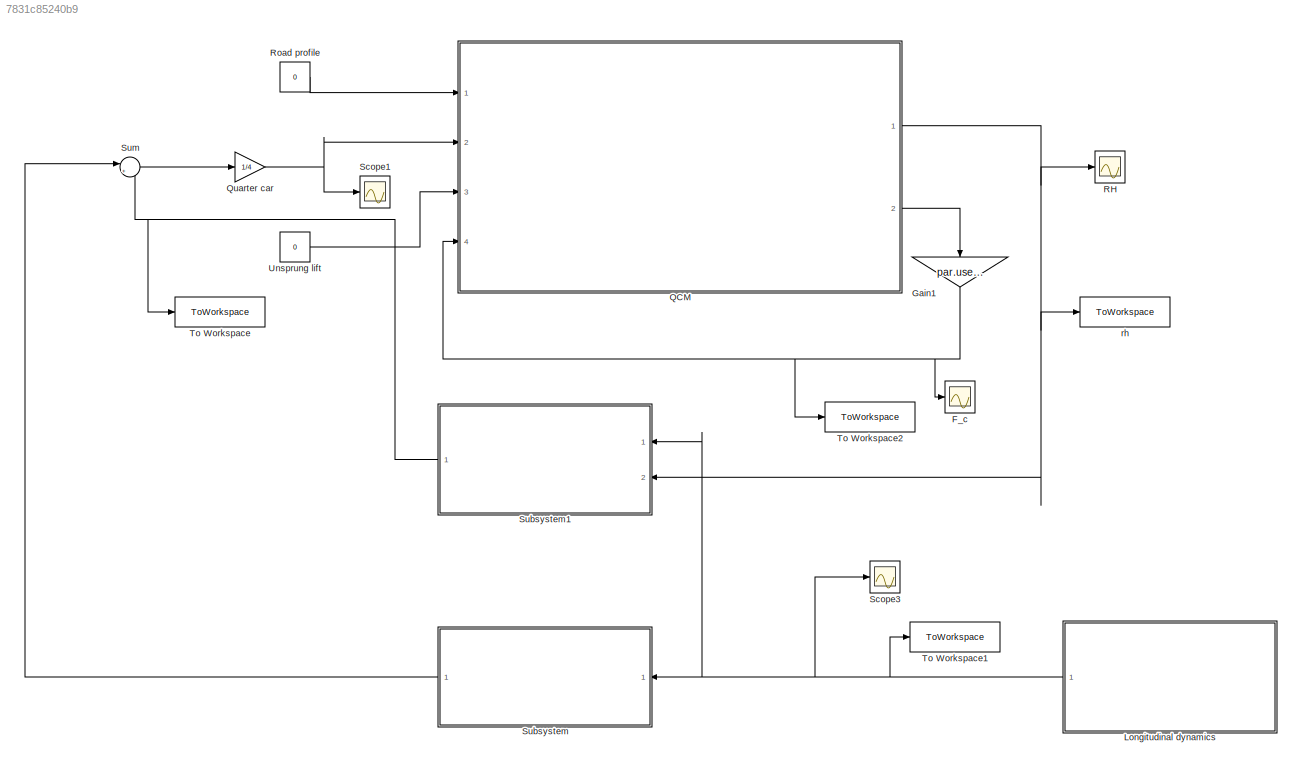
MODEL slx_7831c85240b9
KIND model
CONFIG AbsTol = auto
CONFIG EnableMultiTasking = off
CONFIG FixedStep = 0.01
CONFIG MaxStep = auto
CONFIG MinStep = auto
CONFIG RelTol = 1e-3
CONFIG SampleTimeConstraint = Unconstrained
CONFIG SolverName = FixedStepAuto
CONFIG StartTime = 0.0
CONFIG StopTime = 30
BLOCK [Scope] F_c
  Floating = off
  NumInputPorts = 1
  Ports = [1]
  ScopeSpecificationString = Simulink.scopes.TimeScopeBlockCfg('CurrentConfiguration', extmgr.ConfigurationSet(extmgr.Configuration('Core','General UI',true),extmgr.Configuration('Core','Source UI',true),extmgr.Configuration('Sources','WiredSimulink',true,'DataLoggingVariableName','ScopeData1'),extmgr.Configuration('Visuals','Time Domain',true,'SerializedDisplays',{struct('MinYLimReal','-1984.59173','MaxYLimReal','220.51019',...<+1434ch>
BLOCK [Gain] Gain1
  Gain = par.use_LQR
  NameLocation = right
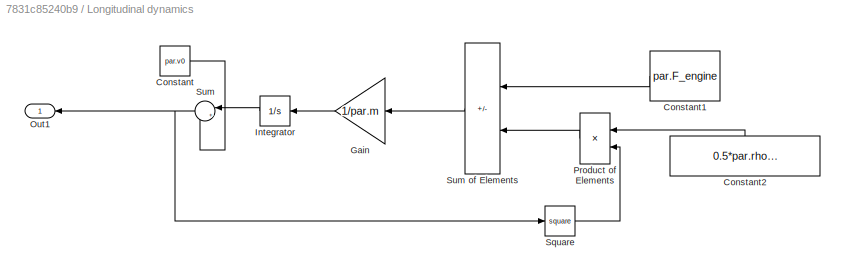
BLOCK [SubSystem] Longitudinal dynamics
  NameLocation = top
  Ports = [0, 1]
  RequestExecContextInheritance = off
BLOCK [Constant] Longitudinal dynamics/Constant
  Value = par.v0
BLOCK [Constant] Longitudinal dynamics/Constant1
  NameLocation = top
  Value = par.F_engine
BLOCK [Constant] Longitudinal dynamics/Constant2
  NameLocation = right
  Value = 0.5*par.rho*par.Cd*par.A
BLOCK [Gain] Longitudinal dynamics/Gain
  Gain = 1/par.m
  NameLocation = top
BLOCK [Integrator] Longitudinal dynamics/Integrator
  NameLocation = top
  Ports = [1, 1]
BLOCK [Outport] Longitudinal dynamics/Out1
  NameLocation = top
BLOCK [Product] Longitudinal dynamics/Product of Elements
  Inputs = **
  NameLocation = top
  Ports = [2, 1]
BLOCK [Math] Longitudinal dynamics/Square
  Operator = square
  Ports = [1, 1]
BLOCK [Sum] Longitudinal dynamics/Sum
  Inputs = |++
  NameLocation = top
  Ports = [2, 1]
BLOCK [Sum] Longitudinal dynamics/Sum of Elements
  IconShape = rectangular
  Inputs = +-
  NameLocation = top
  Ports = [2, 1]
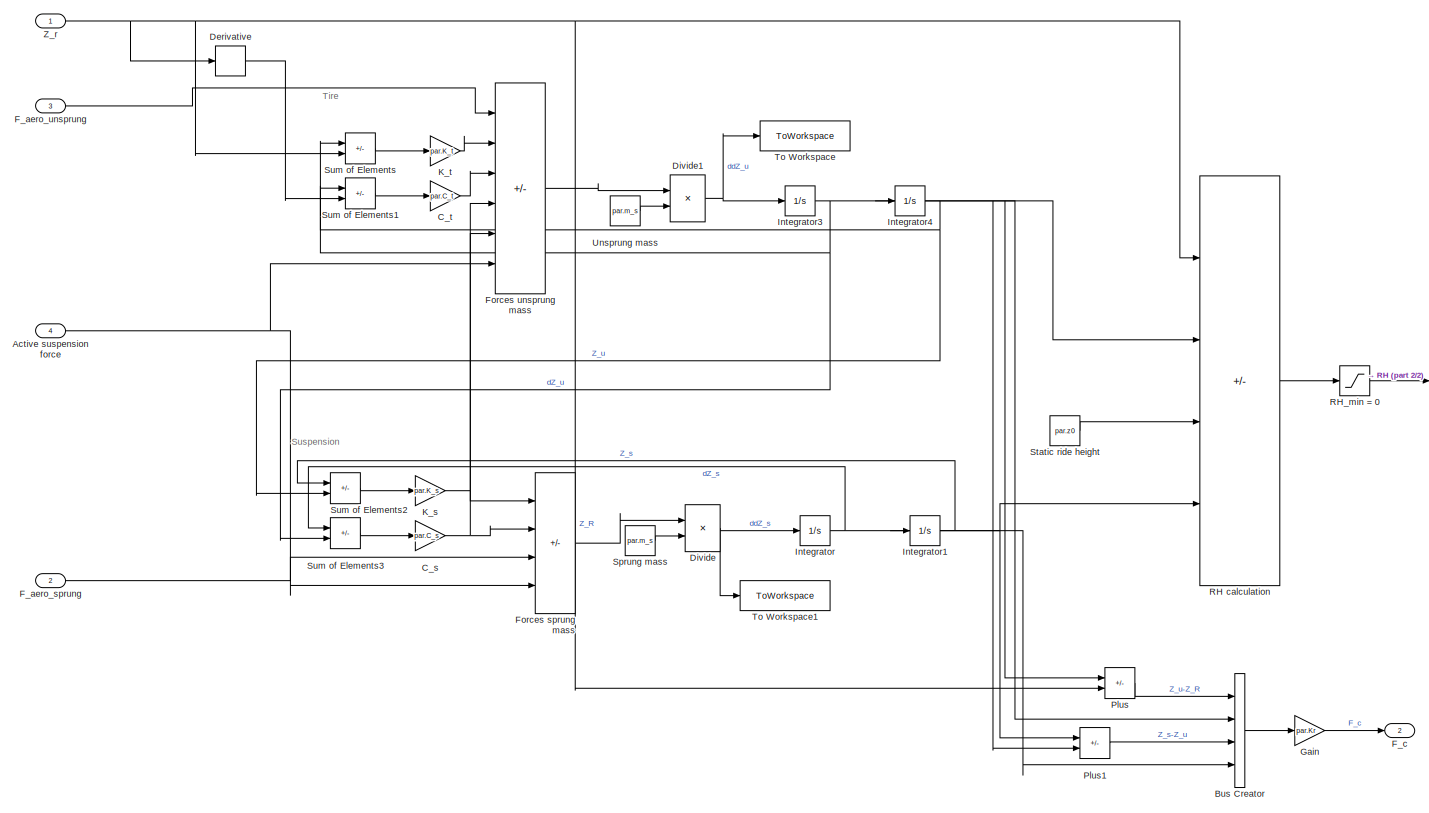
[diagram: QCM - part 1/2, most of the canvas]
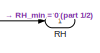
[diagram: QCM - part 2/2, middle right region]
BLOCK [SubSystem] QCM
  Ports = [4, 2]
  RequestExecContextInheritance = off
BLOCK [Inport] QCM/Active suspension force
  Port = 4
BLOCK [BusCreator] QCM/Bus Creator
  DisplayOption = bar
  InheritFromInputs = on
  Inputs = 4
  Ports = [4, 1]
BLOCK [Gain] QCM/C_s
  Gain = par.C_s
BLOCK [Gain] QCM/C_t
  Gain = par.C_t
BLOCK [Derivative] QCM/Derivative
BLOCK [Product] QCM/Divide
  Inputs = */
  Ports = [2, 1]
BLOCK [Product] QCM/Divide1
  Inputs = */
  Ports = [2, 1]
BLOCK [Inport] QCM/F_aero_sprung
  Port = 2
BLOCK [Inport] QCM/F_aero_unsprung
  Port = 3
BLOCK [Outport] QCM/F_c
  Port = 2
BLOCK [Sum] QCM/Forces sprung mass
  IconShape = rectangular
  Inputs = ++--
  Ports = [4, 1]
BLOCK [Sum] QCM/Forces unsprung mass
  IconShape = rectangular
  Inputs = +++---
  Ports = [6, 1]
BLOCK [Gain] QCM/Gain
  Gain = par.Kr
  Multiplication = Matrix(K*u)
BLOCK [Integrator] QCM/Integrator
  Ports = [1, 1]
BLOCK [Integrator] QCM/Integrator1
  Ports = [1, 1]
BLOCK [Integrator] QCM/Integrator3
  Ports = [1, 1]
BLOCK [Integrator] QCM/Integrator4
  Ports = [1, 1]
BLOCK [Gain] QCM/K_s
  Gain = par.K_s
BLOCK [Gain] QCM/K_t
  Gain = par.K_t
BLOCK [Sum] QCM/Plus
  IconShape = rectangular
  Inputs = +-
  Ports = [2, 1]
BLOCK [Sum] QCM/Plus1
  IconShape = rectangular
  Inputs = +-
  Ports = [2, 1]
BLOCK [Outport] QCM/RH
BLOCK [Sum] QCM/RH calculation
  IconShape = rectangular
  Inputs = -+++
  Ports = [4, 1]
BLOCK [Saturate] QCM/RH_min = 0
  LowerLimit = 0
  UpperLimit = inf
BLOCK [Constant] QCM/Sprung mass
  Value = par.m_s
BLOCK [Constant] QCM/Static ride height
  Value = par.z0
BLOCK [Sum] QCM/Sum of Elements
  IconShape = rectangular
  Inputs = -+
  Ports = [2, 1]
BLOCK [Sum] QCM/Sum of Elements1
  IconShape = rectangular
  Inputs = -+
  Ports = [2, 1]
BLOCK [Sum] QCM/Sum of Elements2
  IconShape = rectangular
  Inputs = -+
  Ports = [2, 1]
BLOCK [Sum] QCM/Sum of Elements3
  IconShape = rectangular
  Inputs = -+
  Ports = [2, 1]
BLOCK [ToWorkspace] QCM/To Workspace
  FixptAsFi = on
  MaxDataPoints = inf
  Ports = [1]
  SampleTime = -1
  SaveFormat = Timeseries
  VariableName = ddZ_u
BLOCK [ToWorkspace] QCM/To Workspace1
  FixptAsFi = on
  MaxDataPoints = inf
  Ports = [1]
  SampleTime = -1
  SaveFormat = Timeseries
  VariableName = ddZ_s
BLOCK [Constant] QCM/Unsprung mass
  Value = par.m_s
BLOCK [Inport] QCM/Z_r
BLOCK [Gain] Quarter car
  Gain = 1/4
BLOCK [Scope] RH
  Floating = off
  NumInputPorts = 1
  Ports = [1]
  ScopeSpecificationString = Simulink.scopes.TimeScopeBlockCfg('CurrentConfiguration', extmgr.ConfigurationSet(extmgr.Configuration('Core','General UI',true),extmgr.Configuration('Core','Source UI',true),extmgr.Configuration('Sources','WiredSimulink',true),extmgr.Configuration('Visuals','Time Domain',true,'SerializedDisplays',{struct('MinYLimReal','0.04173','MaxYLimReal','0.21759','YLabelReal','','MinYLimMag','0.04173','MaxYL...<+1396ch>
BLOCK [Constant] Road profile
  Value = 0
BLOCK [Scope] Scope1
  Floating = off
  NumInputPorts = 1
  Ports = [1]
  ScopeSpecificationString = Simulink.scopes.TimeScopeBlockCfg('CurrentConfiguration', extmgr.ConfigurationSet(extmgr.Configuration('Core','General UI',true),extmgr.Configuration('Core','Source UI',true),extmgr.Configuration('Sources','WiredSimulink',true,'DataLoggingVariableName','ScopeData1'),extmgr.Configuration('Visuals','Time Domain',true,'SerializedDisplays',{struct('MinYLimReal','3850.43642','MaxYLimReal','17534.94257'...<+1475ch>
BLOCK [Scope] Scope3
  Floating = off
  NumInputPorts = 1
  Ports = [1]
  ScopeSpecificationString = Simulink.scopes.TimeScopeBlockCfg('CurrentConfiguration', extmgr.ConfigurationSet(extmgr.Configuration('Core','General UI',true),extmgr.Configuration('Core','Source UI',true),extmgr.Configuration('Sources','WiredSimulink',true,'DataLoggingVariableName','ScopeData2'),extmgr.Configuration('Visuals','Time Domain',true,'SerializedDisplays',{struct('MinYLimReal','58.70747','MaxYLimReal','60.09151','YLa...<+1473ch>
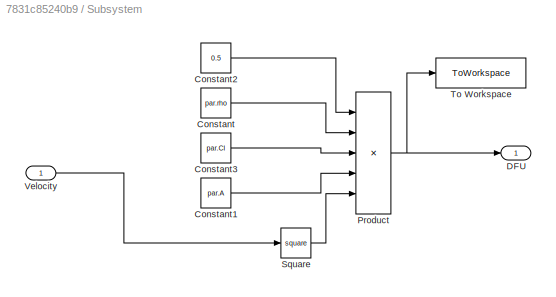
BLOCK [SubSystem] Subsystem
  NameLocation = top
  Ports = [1, 1]
  RequestExecContextInheritance = off
BLOCK [Constant] Subsystem/Constant
  Value = par.rho
BLOCK [Constant] Subsystem/Constant1
  Value = par.A
BLOCK [Constant] Subsystem/Constant2
  Value = 0.5
BLOCK [Constant] Subsystem/Constant3
  Value = par.Cl
BLOCK [Outport] Subsystem/DFU
BLOCK [Product] Subsystem/Product
  Inputs = 5
  Ports = [5, 1]
BLOCK [Math] Subsystem/Square
  Operator = square
  Ports = [1, 1]
BLOCK [ToWorkspace] Subsystem/To Workspace
  FixptAsFi = on
  MaxDataPoints = inf
  Ports = [1]
  SampleTime = -1
  SaveFormat = Timeseries
  VariableName = dfu
BLOCK [Inport] Subsystem/Velocity
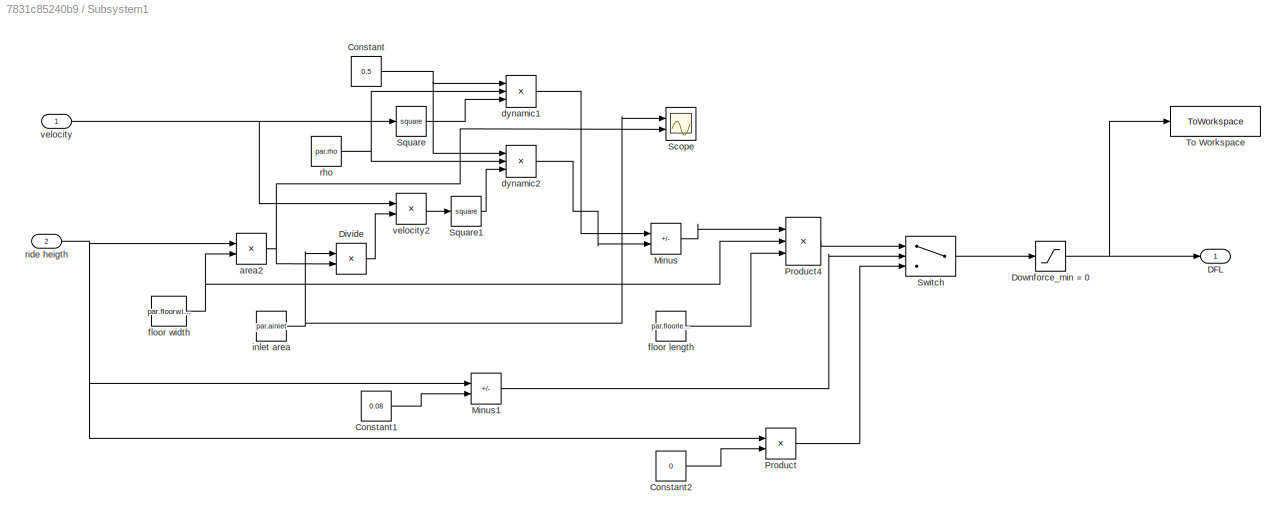
BLOCK [SubSystem] Subsystem1
  NameLocation = top
  Ports = [2, 1]
  RequestExecContextInheritance = off
BLOCK [Constant] Subsystem1/Constant
  Value = 0.5
BLOCK [Constant] Subsystem1/Constant1
  Value = 0.08
BLOCK [Constant] Subsystem1/Constant2
  Value = 0
BLOCK [Outport] Subsystem1/DFL
BLOCK [Product] Subsystem1/Divide
  Inputs = */
  Ports = [2, 1]
BLOCK [Saturate] Subsystem1/Downforce_min = 0
  LowerLimit = 0
  UpperLimit = Inf
BLOCK [Sum] Subsystem1/Minus
  IconShape = rectangular
  Inputs = -+
  Ports = [2, 1]
BLOCK [Sum] Subsystem1/Minus1
  IconShape = rectangular
  Inputs = +-
  Ports = [2, 1]
BLOCK [Product] Subsystem1/Product
  Ports = [2, 1]
BLOCK [Product] Subsystem1/Product4
  Inputs = 3
  Ports = [3, 1]
BLOCK [Scope] Subsystem1/Scope
  Floating = off
  NumInputPorts = 2
  Ports = [2]
  ScopeSpecificationString = Simulink.scopes.TimeScopeBlockCfg('CurrentConfiguration', extmgr.ConfigurationSet(extmgr.Configuration('Core','General UI',true),extmgr.Configuration('Core','Source UI',true),extmgr.Configuration('Sources','WiredSimulink',true,'DataLoggingVariableName','ScopeData2'),extmgr.Configuration('Visuals','Time Domain',true,'SerializedDisplays',{struct('MinYLimReal','0.01255','MaxYLimReal','0.12083','YLabe...<+1406ch>
BLOCK [Math] Subsystem1/Square
  Operator = square
  Ports = [1, 1]
BLOCK [Math] Subsystem1/Square1
  Operator = square
  Ports = [1, 1]
BLOCK [Switch] Subsystem1/Switch
  Criteria = u2 > Threshold
  InputSameDT = off
  SaturateOnIntegerOverflow = off
BLOCK [ToWorkspace] Subsystem1/To Workspace
  FixptAsFi = on
  MaxDataPoints = inf
  Ports = [1]
  SampleTime = -1
  SaveFormat = Timeseries
  VariableName = dfl
BLOCK [Product] Subsystem1/area2
  Ports = [2, 1]
BLOCK [Product] Subsystem1/dynamic1
  Inputs = 3
  Ports = [3, 1]
BLOCK [Product] Subsystem1/dynamic2
  Inputs = 3
  Ports = [3, 1]
BLOCK [Constant] Subsystem1/floor length
  Value = par.floorlength
BLOCK [Constant] Subsystem1/floor width
  Value = par.floorwidth
BLOCK [Constant] Subsystem1/inlet area
  Value = par.ainlet
BLOCK [Constant] Subsystem1/rho
  Value = par.rho
BLOCK [Inport] Subsystem1/ride heigth
  Port = 2
BLOCK [Inport] Subsystem1/velocity
BLOCK [Product] Subsystem1/velocity2
  Ports = [2, 1]
BLOCK [Sum] Sum
  Inputs = |++
  Ports = [2, 1]
BLOCK [ToWorkspace] To Workspace
  FixptAsFi = on
  MaxDataPoints = inf
  Ports = [1]
  SampleTime = -1
  SaveFormat = Timeseries
  VariableName = lower_downforce
BLOCK [ToWorkspace] To Workspace1
  FixptAsFi = on
  MaxDataPoints = inf
  Ports = [1]
  SampleTime = -1
  SaveFormat = Timeseries
  VariableName = V
BLOCK [ToWorkspace] To Workspace2
  FixptAsFi = on
  MaxDataPoints = inf
  Ports = [1]
  SampleTime = -1
  SaveFormat = Timeseries
  VariableName = u
BLOCK [Constant] Unsprung lift
  Value = 0
BLOCK [ToWorkspace] rh
  FixptAsFi = on
  MaxDataPoints = inf
  Ports = [1]
  SampleTime = -1
  SaveFormat = Timeseries
  VariableName = RH
ANNOTATION QCM: Suspension
ANNOTATION QCM: Tire
NET Gain1:1 -> F_c:1, QCM:4, To Workspace2:1
LINE Longitudinal dynamics/Constant1:1 -> Longitudinal dynamics/Sum of Elements:1
LINE Longitudinal dynamics/Constant2:1 -> Longitudinal dynamics/Product of Elements:1
LINE Longitudinal dynamics/Constant:1 -> Longitudinal dynamics/Sum:2
LINE Longitudinal dynamics/Gain:1 -> Longitudinal dynamics/Integrator:1
LINE Longitudinal dynamics/Integrator:1 -> Longitudinal dynamics/Sum:1
LINE Longitudinal dynamics/Product of Elements:1 -> Longitudinal dynamics/Sum of Elements:2
LINE Longitudinal dynamics/Square:1 -> Longitudinal dynamics/Product of Elements:2
LINE Longitudinal dynamics/Sum of Elements:1 -> Longitudinal dynamics/Gain:1
NET Longitudinal dynamics/Sum:1 -> Longitudinal dynamics/Out1:1, Longitudinal dynamics/Square:1
NET Longitudinal dynamics:1 -> Scope3:1, Subsystem1:1, Subsystem:1, To Workspace1:1
NET QCM/Active suspension force:1 -> QCM/Forces sprung mass:4, QCM/Forces unsprung mass:6
LINE QCM/Bus Creator:1 -> QCM/Gain:1
NET QCM/C_s:1 -> QCM/Forces sprung mass:2, QCM/Forces unsprung mass:5
LINE QCM/C_t:1 -> QCM/Forces unsprung mass:3
LINE QCM/Derivative:1 -> QCM/Sum of Elements1:2
NET QCM/Divide1:1 -> QCM/Integrator3:1, QCM/To Workspace:1
NET QCM/Divide:1 -> QCM/Integrator:1, QCM/To Workspace1:1
LINE QCM/F_aero_sprung:1 -> QCM/Forces sprung mass:3
LINE QCM/F_aero_unsprung:1 -> QCM/Forces unsprung mass:1
LINE QCM/Forces sprung mass:1 -> QCM/Divide:1
LINE QCM/Forces unsprung mass:1 -> QCM/Divide1:1
LINE QCM/Gain:1 -> QCM/F_c:1
NET QCM/Integrator1:1 -> QCM/Plus1:1, QCM/RH calculation:4, QCM/Sum of Elements2:1
NET QCM/Integrator3:1 -> QCM/Bus Creator:2, QCM/Integrator4:1, QCM/Sum of Elements1:1, QCM/Sum of Elements3:2
NET QCM/Integrator4:1 -> QCM/Plus1:2, QCM/Plus:1, QCM/RH calculation:2, QCM/Sum of Elements2:2, QCM/Sum of Elements:1
NET QCM/Integrator:1 -> QCM/Bus Creator:4, QCM/Integrator1:1, QCM/Sum of Elements3:1
NET QCM/K_s:1 -> QCM/Forces sprung mass:1, QCM/Forces unsprung mass:4
LINE QCM/K_t:1 -> QCM/Forces unsprung mass:2
LINE QCM/Plus1:1 -> QCM/Bus Creator:3
LINE QCM/Plus:1 -> QCM/Bus Creator:1
LINE QCM/RH calculation:1 -> QCM/RH_min = 0:1
LINE QCM/RH_min = 0:1 -> QCM/RH:1
LINE QCM/Sprung mass:1 -> QCM/Divide:2
LINE QCM/Static ride height:1 -> QCM/RH calculation:3
LINE QCM/Sum of Elements1:1 -> QCM/C_t:1
LINE QCM/Sum of Elements2:1 -> QCM/K_s:1
LINE QCM/Sum of Elements3:1 -> QCM/C_s:1
LINE QCM/Sum of Elements:1 -> QCM/K_t:1
LINE QCM/Unsprung mass:1 -> QCM/Divide1:2
NET QCM/Z_r:1 -> QCM/Derivative:1, QCM/Plus:2, QCM/RH calculation:1, QCM/Sum of Elements:2
NET QCM:1 -> RH:1, Subsystem1:2, rh:1
LINE QCM:2 -> Gain1:1
NET Quarter car:1 -> QCM:2, Scope1:1
LINE Road profile:1 -> QCM:1
LINE Subsystem/Constant1:1 -> Subsystem/Product:4
LINE Subsystem/Constant2:1 -> Subsystem/Product:1
LINE Subsystem/Constant3:1 -> Subsystem/Product:3
LINE Subsystem/Constant:1 -> Subsystem/Product:2
NET Subsystem/Product:1 -> Subsystem/DFU:1, Subsystem/To Workspace:1
LINE Subsystem/Square:1 -> Subsystem/Product:5
LINE Subsystem/Velocity:1 -> Subsystem/Square:1
LINE Subsystem1/Constant1:1 -> Subsystem1/Minus1:2
LINE Subsystem1/Constant2:1 -> Subsystem1/Product:2
NET Subsystem1/Constant:1 -> Subsystem1/dynamic1:1, Subsystem1/dynamic2:1
LINE Subsystem1/Divide:1 -> Subsystem1/velocity2:2
NET Subsystem1/Downforce_min = 0:1 -> Subsystem1/DFL:1, Subsystem1/To Workspace:1
LINE Subsystem1/Minus1:1 -> Subsystem1/Switch:2
LINE Subsystem1/Minus:1 -> Subsystem1/Product4:1
LINE Subsystem1/Product4:1 -> Subsystem1/Switch:1
LINE Subsystem1/Product:1 -> Subsystem1/Switch:3
LINE Subsystem1/Square1:1 -> Subsystem1/dynamic2:3
LINE Subsystem1/Square:1 -> Subsystem1/dynamic1:3
LINE Subsystem1/Switch:1 -> Subsystem1/Downforce_min = 0:1
NET Subsystem1/area2:1 -> Subsystem1/Divide:2, Subsystem1/Scope:2
LINE Subsystem1/dynamic1:1 -> Subsystem1/Minus:1
LINE Subsystem1/dynamic2:1 -> Subsystem1/Minus:2
LINE Subsystem1/floor length:1 -> Subsystem1/Product4:3
NET Subsystem1/floor width:1 -> Subsystem1/Product4:2, Subsystem1/area2:2
NET Subsystem1/inlet area:1 -> Subsystem1/Divide:1, Subsystem1/Scope:1
NET Subsystem1/rho:1 -> Subsystem1/dynamic1:2, Subsystem1/dynamic2:2
NET Subsystem1/ride heigth:1 -> Subsystem1/Minus1:1, Subsystem1/Product:1, Subsystem1/area2:1
LINE Subsystem1/velocity2:1 -> Subsystem1/Square1:1
NET Subsystem1/velocity:1 -> Subsystem1/Square:1, Subsystem1/velocity2:1
NET Subsystem1:1 -> Sum:2, To Workspace:1
LINE Subsystem:1 -> Sum:1
LINE Sum:1 -> Quarter car:1
LINE Unsprung lift:1 -> QCM:3
note: NET lines group one-source signal fan-out (src -> all destinations, sorted); 1:1 wires keep LINE
